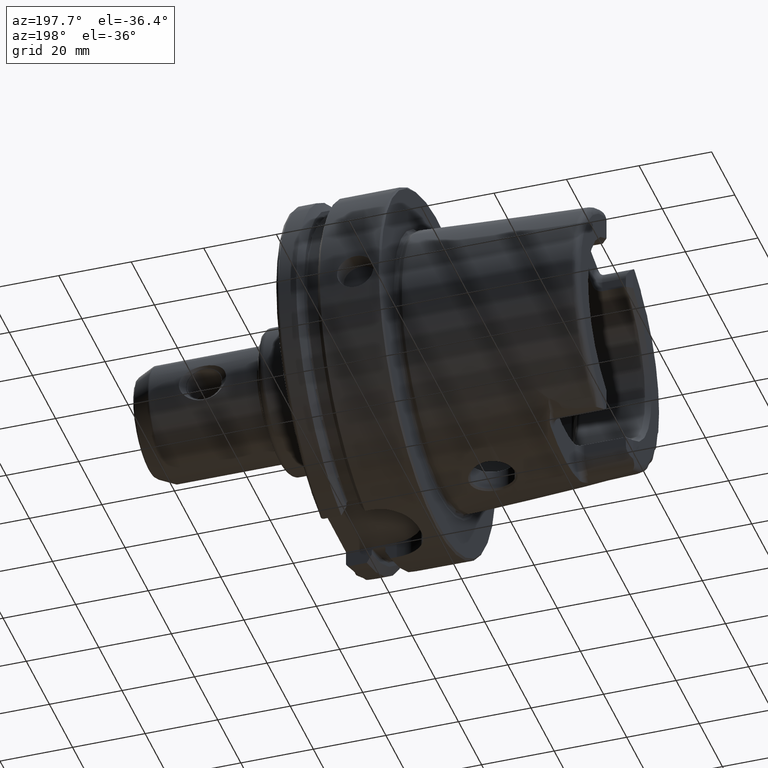
[diagram: clean part render]
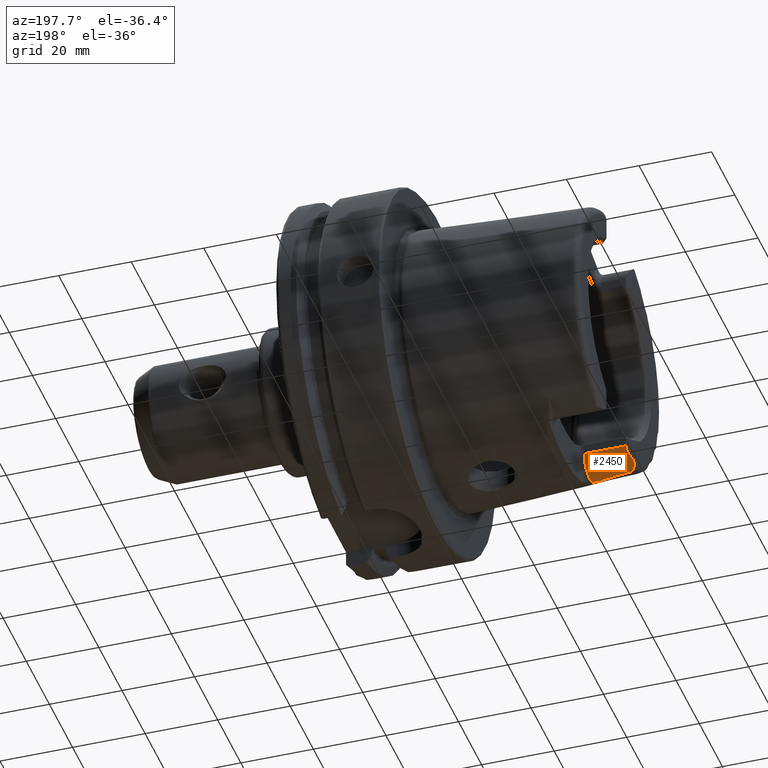
[diagram: same view with one face highlighted and labeled with its STEP entity id]
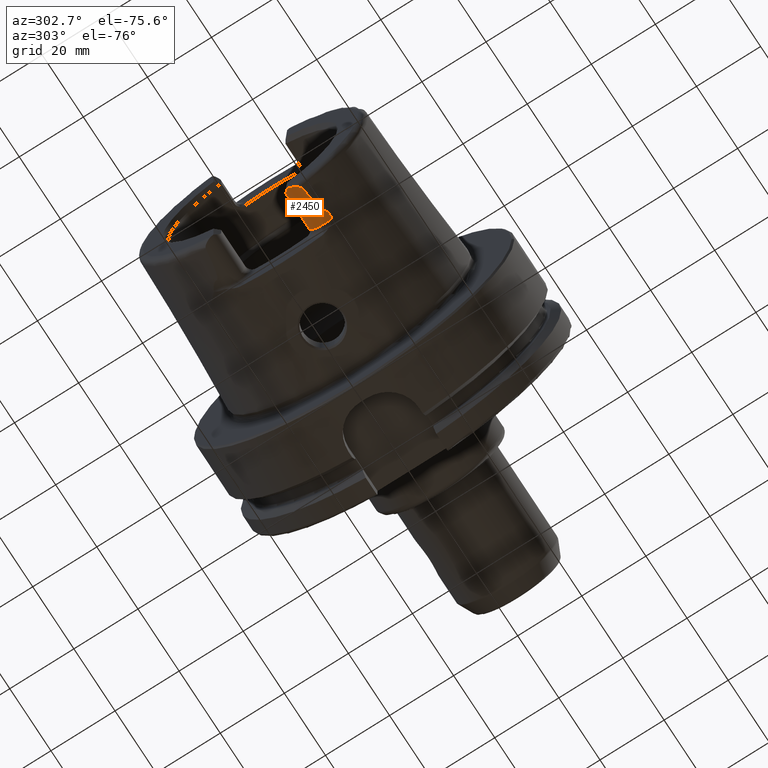
[diagram: same view with one face highlighted and labeled with its STEP entity id]
A machine part, auxiliary view. The second image highlights one B-rep face of the part: STEP entity #2450.
A second angle (auxiliary view) of the same face is appended — the face is thin or edge-on in the first view.
In plain terms, the highlighted cylindrical surface (edge-blend (fillet) strip) has radius 4.88 mm, axis along (-1, 0, 0).
Its self-contained STEP definition (entity closure, byte-faithful):
#154=CIRCLE('',#2602,4.88);
#211=CIRCLE('',#2715,4.88);
#215=CIRCLE('',#2721,4.88);
#407=FACE_OUTER_BOUND('',#560,.T.);
#560=EDGE_LOOP('',(#2163,#2164,#2165,#2166,#2167,#2168,#2169,#2170));
#623=B_SPLINE_CURVE_WITH_KNOTS('',3,(#4371,#4372,#4373,#4374,#4375,#4376,
#4377,#4378,#4379,#4380,#4381,#4382,#4383,#4384,#4385,#4386,#4387,#4388),
 .UNSPECIFIED.,.F.,.F.,(4,2,2,2,2,2,2,2,4),(0.941531918456969,1.22402920907858,
1.42803407725834,1.6320389454381,1.70619252829239,1.78034611114668,1.80087123762391,
1.81113380086252,1.82139636410113),.UNSPECIFIED.);
#667=B_SPLINE_CURVE_WITH_KNOTS('',3,(#5375,#5376,#5377,#5378,#5379,#5380,
#5381,#5382,#5383,#5384,#5385,#5386),.UNSPECIFIED.,.F.,.F.,(4,2,2,2,2,4),
(-0.330531435638092,-0.267908000768824,-0.159978118105095,-0.0786368985358016,
-0.0319888850382436,0.),.UNSPECIFIED.);
#778=LINE('',#5352,#900);
#780=LINE('',#5391,#902);
#900=VECTOR('',#3364,10.);
#902=VECTOR('',#3396,10.);
#916=ELLIPSE('',#2594,6.90136218438071,4.88);
#1010=VERTEX_POINT('',#4112);
#1011=VERTEX_POINT('',#4113);
#1017=VERTEX_POINT('',#4129);
#1039=VERTEX_POINT('',#4368);
#1040=VERTEX_POINT('',#4370);
#1143=VERTEX_POINT('',#5316);
#1144=VERTEX_POINT('',#5318);
#1148=VERTEX_POINT('',#5339);
#1289=EDGE_CURVE('',#1010,#1011,#916,.T.);
#1297=EDGE_CURVE('',#1011,#1017,#154,.T.);
#1327=EDGE_CURVE('',#1039,#1040,#623,.T.);
#1483=EDGE_CURVE('',#1143,#1144,#211,.T.);
#1490=EDGE_CURVE('',#1148,#1143,#215,.T.);
#1496=EDGE_CURVE('',#1144,#1010,#778,.T.);
#1503=EDGE_CURVE('',#1017,#1039,#667,.T.);
#1506=EDGE_CURVE('',#1148,#1040,#780,.T.);
#2163=ORIENTED_EDGE('',*,*,#1289,.F.);
#2164=ORIENTED_EDGE('',*,*,#1496,.F.);
#2165=ORIENTED_EDGE('',*,*,#1483,.F.);
#2166=ORIENTED_EDGE('',*,*,#1490,.F.);
#2167=ORIENTED_EDGE('',*,*,#1506,.T.);
#2168=ORIENTED_EDGE('',*,*,#1327,.F.);
#2169=ORIENTED_EDGE('',*,*,#1503,.F.);
#2170=ORIENTED_EDGE('',*,*,#1297,.F.);
#2334=CYLINDRICAL_SURFACE('',#2741,4.88);
#2450=ADVANCED_FACE('',(#407),#2334,.T.);
#2594=AXIS2_PLACEMENT_3D('',#4114,#3028,#3029);
#2602=AXIS2_PLACEMENT_3D('',#4130,#3046,#3047);
#2715=AXIS2_PLACEMENT_3D('',#5319,#3335,#3336);
#2721=AXIS2_PLACEMENT_3D('',#5341,#3349,#3350);
#2741=AXIS2_PLACEMENT_3D('',#5390,#3394,#3395);
#3028=DIRECTION('center_axis',(-0.707106781186546,0.707106781186549,0.));
#3029=DIRECTION('ref_axis',(-0.707106781186549,-0.707106781186546,0.));
#3046=DIRECTION('center_axis',(-1.,0.,0.));
#3047=DIRECTION('ref_axis',(0.,-1.,0.));
#3335=DIRECTION('center_axis',(1.,0.,0.));
#3336=DIRECTION('ref_axis',(0.,0.510937901715381,-0.8596176246394));
#3349=DIRECTION('center_axis',(1.,0.,0.));
#3350=DIRECTION('ref_axis',(0.,-0.477884921181368,-0.878422450821629));
#3364=DIRECTION('',(-1.,0.,0.));
#3394=DIRECTION('center_axis',(-1.,0.,0.));
#3395=DIRECTION('ref_axis',(0.,-1.,0.));
#3396=DIRECTION('',(-1.,0.,0.));
#4112=CARTESIAN_POINT('',(-48.5,-10.01,-27.37));
#4113=CARTESIAN_POINT('',(-50.,-11.51,-30.8899431813596));
#4114=CARTESIAN_POINT('Origin',(-53.38,-14.89,-27.37));
#4129=CARTESIAN_POINT('',(-50.,-12.0743049948301,-31.355757348091));
#4130=CARTESIAN_POINT('Origin',(-50.,-14.89,-27.37));
#4368=CARTESIAN_POINT('',(-48.1000748840304,-15.0787152148571,-32.2463497175327));
#4370=CARTESIAN_POINT('',(-39.3086860506441,-17.2220784153651,-31.6567015600095));
#4371=CARTESIAN_POINT('Ctrl Pts',(-48.1000748840304,-15.0787152148571,-32.2463497175327));
#4372=CARTESIAN_POINT('Ctrl Pts',(-47.0815953489825,-15.2100460868363,-32.2412671998384));
#4373=CARTESIAN_POINT('Ctrl Pts',(-46.0708874643597,-15.3507400024476,-32.2307282620297));
#4374=CARTESIAN_POINT('Ctrl Pts',(-44.3638273319757,-15.6187903492069,-32.19660809961));
#4375=CARTESIAN_POINT('Ctrl Pts',(-43.6583569770469,-15.7387900082285,-32.1775602969968));
#4376=CARTESIAN_POINT('Ctrl Pts',(-42.2774968259687,-16.0065639510366,-32.1225120780024));
#4377=CARTESIAN_POINT('Ctrl Pts',(-41.6015350915672,-16.1516844838416,-32.0879931345296));
#4378=CARTESIAN_POINT('Ctrl Pts',(-40.7121103138057,-16.4018770942044,-32.0104206666339));
#4379=CARTESIAN_POINT('Ctrl Pts',(-40.4538120390228,-16.4807891402054,-31.9844991546726));
#4380=CARTESIAN_POINT('Ctrl Pts',(-39.9557031082111,-16.6668123685081,-31.9161154581445));
#4381=CARTESIAN_POINT('Ctrl Pts',(-39.7137538085319,-16.7691556019457,-31.8763882092881));
#4382=CARTESIAN_POINT('Ctrl Pts',(-39.4690330405114,-16.9505386197656,-31.7938497879436));
#4383=CARTESIAN_POINT('Ctrl Pts',(-39.41492287308,-16.9977687004959,-31.7717242618145));
#4384=CARTESIAN_POINT('Ctrl Pts',(-39.3545931085758,-17.0769444761517,-31.7326299669));
#4385=CARTESIAN_POINT('Ctrl Pts',(-39.3379356243703,-17.1047575471073,-31.7185977246152));
#4386=CARTESIAN_POINT('Ctrl Pts',(-39.314977865636,-17.1622985367361,-31.688808329826));
#4387=CARTESIAN_POINT('Ctrl Pts',(-39.3086860506439,-17.1920288621925,-31.6730493074242));
#4388=CARTESIAN_POINT('Ctrl Pts',(-39.3086860506439,-17.2220784153651,-31.6567015600096));
#5316=CARTESIAN_POINT('',(-37.,-13.4017880550143,-32.0175396939458));
#5318=CARTESIAN_POINT('',(-37.,-10.01,-27.37));
#5319=CARTESIAN_POINT('Origin',(-37.,-14.89,-27.37));
#5339=CARTESIAN_POINT('',(-37.,-17.2220784153651,-31.6567015600095));
#5341=CARTESIAN_POINT('Origin',(-37.,-14.89,-27.37));
#5352=CARTESIAN_POINT('',(-35.,-10.01,-27.37));
#5375=CARTESIAN_POINT('Ctrl Pts',(-50.,-12.0743049948301,-31.355757348091));
#5376=CARTESIAN_POINT('Ctrl Pts',(-50.,-12.2858381230511,-31.5051926299064));
#5377=CARTESIAN_POINT('Ctrl Pts',(-49.9653696826563,-12.5170331398669,-31.6430588255455));
#5378=CARTESIAN_POINT('Ctrl Pts',(-49.7810065498998,-13.1911222585011,-31.9692156023964));
#5379=CARTESIAN_POINT('Ctrl Pts',(-49.5806767805337,-13.6194685503754,-32.0969374367804));
#5380=CARTESIAN_POINT('Ctrl Pts',(-49.1716377200869,-14.2730899346346,-32.2192774131036));
#5381=CARTESIAN_POINT('Ctrl Pts',(-48.9774936618895,-14.5201969661755,-32.2395201073332));
#5382=CARTESIAN_POINT('Ctrl Pts',(-48.6675943633755,-14.8125911006811,-32.2505512851489));
#5383=CARTESIAN_POINT('Ctrl Pts',(-48.5398374959924,-14.912197389574,-32.2504544601106));
#5384=CARTESIAN_POINT('Ctrl Pts',(-48.3063803700173,-15.0305209025154,-32.2482139663407));
#5385=CARTESIAN_POINT('Ctrl Pts',(-48.2058276135777,-15.0650786147019,-32.2468774553032));
#5386=CARTESIAN_POINT('Ctrl Pts',(-48.1000748840304,-15.0787152148571,-32.2463497175327));
#5390=CARTESIAN_POINT('Origin',(-35.,-14.89,-27.37));
#5391=CARTESIAN_POINT('',(-35.,-17.2220784153651,-31.6567015600095));